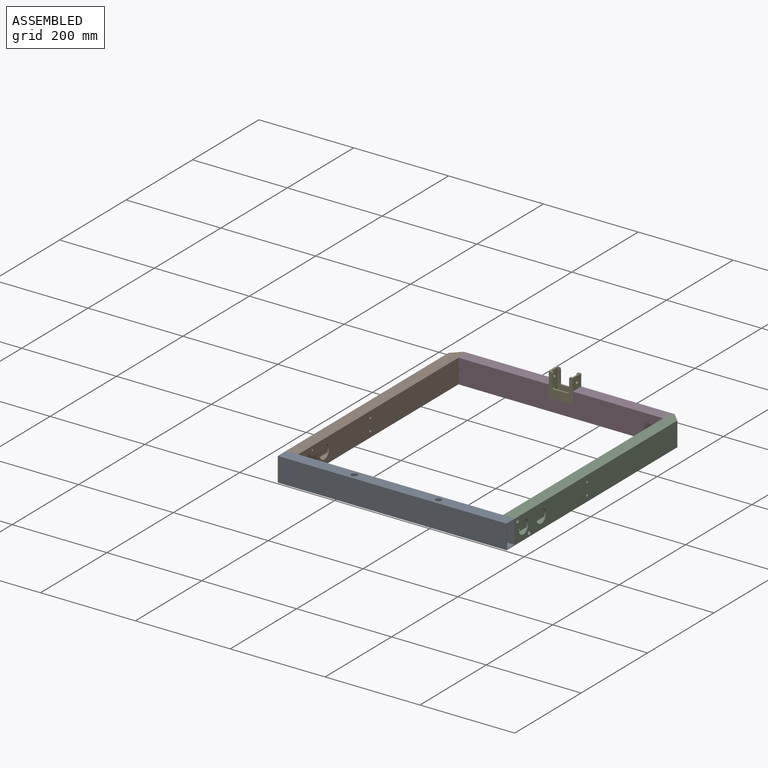
[diagram: assembled view]
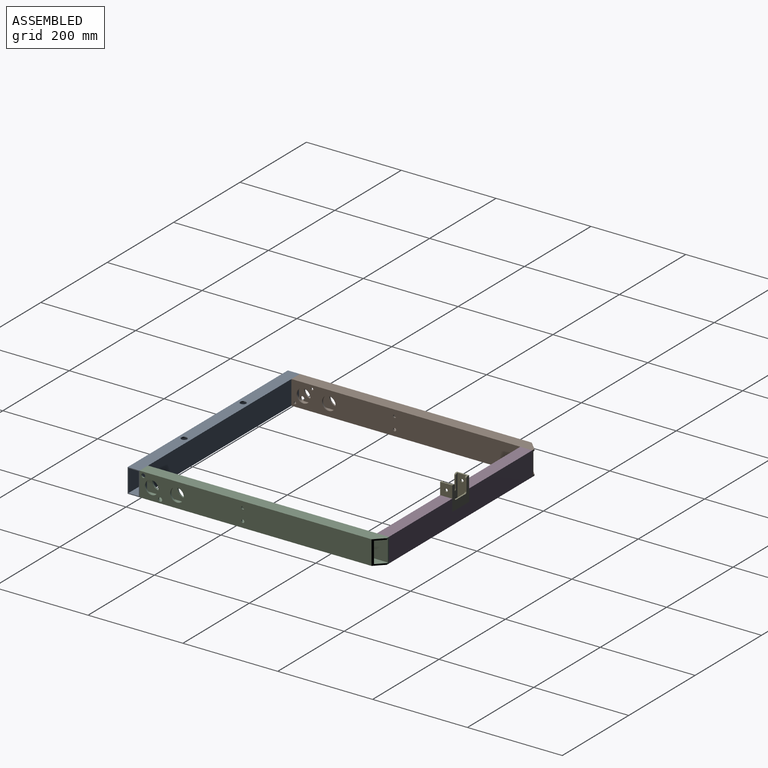
[diagram: assembled view, second angle]
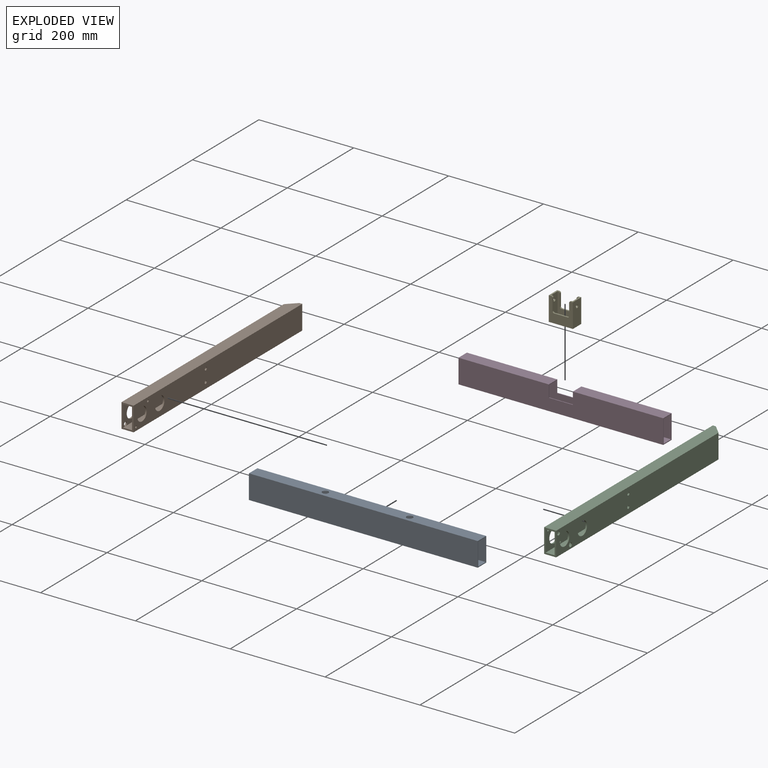
[diagram: exploded view]
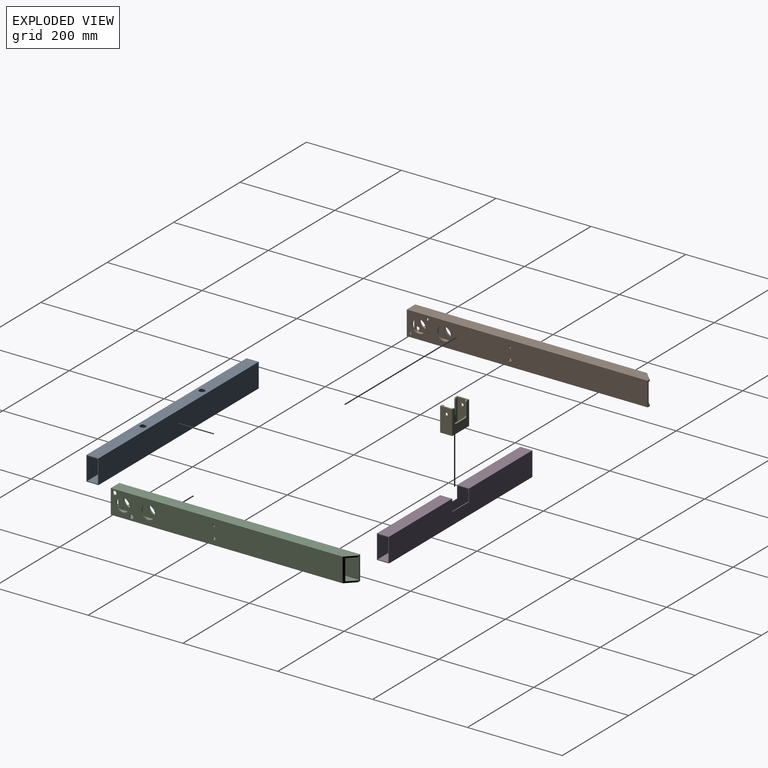
[diagram: exploded view, second angle]
ASSEMBLY  parts=5 mates=4
PART A: 14 faces, bbox 482.6x25.4x50.8 mm
  f0: plane 50.8x25.4mm, normal (1,0,0), area 231.9mm2, adj f2,f3,f4,f5,f6,f7,f8,f9
  f1: plane 50.8x25.4mm, normal (-1,0,0), area 231.9mm2, adj f2,f3,f4,f5,f6,f7,f8,f9
  f2: plane 482.6x50.8mm, normal (0,-1,0), area 24516.1mm2, adj f0,f1,f3,f5
  f3: plane 482.6x25.4mm, normal (0,0,-1), area 12194.7mm2, adj f0,f1,f2,f4,f10,f11
  f4: plane 482.6x50.8mm, normal (0,1,0), area 24516.1mm2, adj f0,f1,f3,f5
  f5: plane 482.6x25.4mm, normal (0,0,1), area 12004.7mm2, adj f0,f1,f2,f4,f12,f13
  f6: plane 482.6x47.63mm, normal (0,1,0), area 22983.8mm2, adj f0,f1,f7,f9
  f7: plane 482.6x22.23mm, normal (0,0,1), area 10662.4mm2, adj f0,f1,f6,f8,f10,f11
  f8: plane 482.6x47.63mm, normal (0,-1,0), area 22983.8mm2, adj f0,f1,f7,f9
  f9: plane 482.6x22.23mm, normal (0,0,-1), area 10472.4mm2, adj f0,f1,f6,f8,f12,f13
  f10: cylinder r=3.17mm len=6.35mm, axis (0,0,1), area 31.7mm2, adj f3,f7
  f11: cylinder r=3.17mm len=6.35mm, axis (0,0,1), area 31.7mm2, adj f3,f7
  f12: cylinder r=6.35mm len=12.7mm, axis (0,0,1), area 63.3mm2, adj f5,f9
  f13: cylinder r=6.35mm len=12.7mm, axis (0,0,1), area 63.3mm2, adj f5,f9
PART B: 23 faces, bbox 25.4x508x50.8 mm
  f0: plane 488.95x50.8mm, normal (-1,0,0), area 23385.6mm2, adj f1,f3,f5,f11,f13,f14,f16,f18
  f1: plane 50.8x25.4mm, normal (0,-1,0), area 443.5mm2, adj f0,f3,f4,f5,f6,f7,f8,f9
  f2: plane 50.8x6.35mm, normal (0,1,0), area 181.5mm2, adj f3,f4,f5,f7,f8,f9,f14
  f3: plane 508x25.4mm, normal (0,0,-1), area 12721.7mm2, adj f0,f1,f2,f4,f14
  f4: plane 508x50.8mm, normal (1,0,0), area 24426.1mm2, adj f1,f2,f3,f5,f10,f12,f15,f17
  f5: plane 508x25.4mm, normal (0,0,1), area 12721.7mm2, adj f0,f1,f2,f4,f14
  f6: plane 492.13x44.45mm, normal (1,0,0), area 20421.9mm2, adj f1,f7,f9,f11,f13,f14,f16,f18
  f7: plane 508x19.05mm, normal (0,0,1), area 9551.4mm2, adj f1,f2,f6,f8,f14
  f8: plane 508x44.45mm, normal (-1,0,0), area 21200.3mm2, adj f1,f2,f7,f9,f10,f12,f15,f17
  f9: plane 508x19.05mm, normal (0,0,-1), area 9551.4mm2, adj f1,f2,f6,f8,f14
  f10: cylinder r=14.26mm len=28.52mm, axis (1,0,0), area 284.5mm2, adj f4,f8
  f11: cylinder r=14.26mm len=28.52mm, axis (1,0,0), area 284.5mm2, adj f0,f6
  f12: cylinder r=14.26mm len=28.52mm, axis (1,0,0), area 284.5mm2, adj f4,f8
  f13: cylinder r=14.26mm len=28.52mm, axis (1,0,0), area 284.5mm2, adj f0,f6
  f14: plane 50.8x19.05mm, normal (-0.71,0.71,0), area 370.7mm2, adj f0,f2,f3,f5,f6,f7,f9
  f15: cylinder r=3.17mm len=6.35mm, axis (1,0,0), area 63.3mm2, adj f4,f8
  f16: cylinder r=3.17mm len=6.35mm, axis (1,0,0), area 63.3mm2, adj f0,f6
  f17: cylinder r=3.17mm len=6.35mm, axis (1,0,0), area 63.3mm2, adj f4,f8
  f18: cylinder r=3.17mm len=6.35mm, axis (1,0,0), area 63.3mm2, adj f0,f6
  f19: cylinder r=2.49mm len=4.98mm, axis (1,0,0), area 49.7mm2, adj f4,f8
  f20: cylinder r=2.49mm len=4.98mm, axis (1,0,0), area 49.7mm2, adj f4,f8
  f21: cylinder r=4.22mm len=8.43mm, axis (-1,0,0), area 84.1mm2, adj f0,f6
  f22: cylinder r=4.22mm len=8.43mm, axis (-1,0,0), area 84.1mm2, adj f0,f6
PART C: same geometry as B
PART D: 16 faces, bbox 431.8x25.4x50.8 mm
  f0: plane 190.5x25.4mm, normal (0,0,1), area 4838.7mm2, adj f3,f4,f6,f13
  f1: plane 190.5x22.23mm, normal (0,0,-1), area 4233.9mm2, adj f3,f8,f10,f13
  f2: plane 50.8x25.4mm, normal (1,0,0), area 231.9mm2, adj f4,f5,f6,f7,f8,f9,f10,f11
  f3: plane 50.8x25.4mm, normal (-1,0,0), area 231.9mm2, adj f0,f1,f4,f5,f6,f8,f9,f10
  f4: plane 431.8x50.8mm, normal (0,-1,0), area 20645.1mm2, adj f0,f2,f3,f5,f7,f12,f13,f14
  f5: plane 431.8x25.4mm, normal (0,0,-1), area 10967.7mm2, adj f2,f3,f4,f6
  f6: plane 431.8x50.8mm, normal (0,1,0), area 20645.1mm2, adj f0,f2,f3,f5,f7,f13,f14,f15
  f7: plane 190.5x25.4mm, normal (0,0,1), area 4838.7mm2, adj f2,f4,f6,f14
  f8: plane 431.8x47.63mm, normal (0,1,0), area 19354.8mm2, adj f1,f2,f3,f9,f11,f12,f13,f14
  f9: plane 431.8x22.23mm, normal (0,0,1), area 9596.8mm2, adj f2,f3,f8,f10
  f10: plane 431.8x47.63mm, normal (0,-1,0), area 19354.8mm2, adj f1,f2,f3,f9,f11,f13,f14,f15
  f11: plane 190.5x22.23mm, normal (0,0,-1), area 4233.9mm2, adj f2,f8,f10,f14
  f12: plane 50.8x1.59mm, normal (0,0,1), area 80.6mm2, adj f4,f8,f13,f14
  f13: plane 25.4x25.4mm, normal (1,0,0), area 115.9mm2, adj f0,f1,f4,f6,f8,f10,f12,f15
  f14: plane 25.4x25.4mm, normal (-1,0,0), area 115.9mm2, adj f4,f6,f7,f8,f10,f11,f12,f15
  f15: plane 50.8x1.59mm, normal (0,0,1), area 80.6mm2, adj f6,f10,f13,f14
PART E: 27 faces, bbox 50.8x25.4x50.8 mm
  f0: plane 25.4x4.76mm, normal (0,0,1), area 90.7mm2, adj f3,f4,f6,f7,f8,f10,f25,f26
  f1: plane 25.4x4.76mm, normal (0,0,1), area 90.7mm2, adj f4,f5,f6,f8,f9,f10,f19,f20
  f2: plane 50.8x25.4mm, normal (0,0,-1), area 443.5mm2, adj f3,f4,f5,f6,f7,f8,f9,f10
  f3: plane 50.8x25.4mm, normal (-1,0,0), area 1258.7mm2, adj f0,f2,f4,f6,f18
  f4: plane 50.8x50.8mm, normal (0,-1,0), area 1471.8mm2, adj f0,f1,f2,f3,f5,f14,f15,f16
  f5: plane 50.8x25.4mm, normal (1,0,0), area 1258.7mm2, adj f1,f2,f4,f6,f17
  f6: plane 50.8x50.8mm, normal (0,1,0), area 1471.8mm2, adj f0,f1,f2,f3,f5,f11,f12,f13
  f7: plane 50.8x19.05mm, normal (1,0,0), area 936.1mm2, adj f0,f2,f8,f10,f18
  f8: plane 50.8x44.45mm, normal (0,1,0), area 1149.2mm2, adj f0,f1,f2,f7,f9,f14,f15,f16
  f9: plane 50.8x19.05mm, normal (-1,0,0), area 936.1mm2, adj f1,f2,f8,f10,f17
  f10: plane 50.8x44.45mm, normal (0,-1,0), area 1149.2mm2, adj f0,f1,f2,f7,f9,f11,f12,f13
  f11: plane 28.58x3.18mm, normal (0,0,1), area 90.7mm2, adj f6,f10,f21,f23
  f12: plane 25.4x3.18mm, normal (-1,0,0), area 80.6mm2, adj f6,f10,f20,f23
  f13: plane 25.4x3.18mm, normal (1,0,0), area 80.6mm2, adj f6,f10,f21,f25
  f14: plane 25.4x3.18mm, normal (1,0,0), area 80.6mm2, adj f4,f8,f24,f26
  f15: plane 25.4x3.18mm, normal (-1,0,0), area 80.6mm2, adj f4,f8,f19,f22
  f16: plane 28.58x3.18mm, normal (0,0,1), area 90.7mm2, adj f4,f8,f22,f24
  f17: cylinder r=3.17mm len=6.35mm, axis (1,0,0), area 63.3mm2, adj f5,f9
  f18: cylinder r=3.17mm len=6.35mm, axis (1,0,0), area 63.3mm2, adj f3,f7
  f19: cylinder r=3.17mm len=3.18mm, axis (0,1,0), area 15.8mm2, adj f1,f4,f8,f15
  f20: cylinder r=3.17mm len=3.18mm, axis (0,1,0), area 15.8mm2, adj f1,f6,f10,f12
  f21: cylinder r=3.17mm len=3.18mm, axis (0,1,0), area 15.8mm2, adj f6,f10,f11,f13
  f22: cylinder r=3.17mm len=3.18mm, axis (0,1,0), area 15.8mm2, adj f4,f8,f15,f16
  f23: cylinder r=3.17mm len=3.18mm, axis (0,1,0), area 15.8mm2, adj f6,f10,f11,f12
  f24: cylinder r=3.17mm len=3.18mm, axis (0,1,0), area 15.8mm2, adj f4,f8,f14,f16
  f25: cylinder r=3.17mm len=3.18mm, axis (0,1,0), area 15.8mm2, adj f0,f6,f10,f13
  f26: cylinder r=3.17mm len=3.18mm, axis (0,1,0), area 15.8mm2, adj f0,f4,f8,f14
PLACE A t=(-509.17,-415.32,-26.54)mm
PLACE B t=(-509.17,118.08,-26.54)mm
PLACE C rot(axis=(0,1,0),180deg) t=(-26.57,118.08,24.26)mm
PLACE D t=(-483.77,92.68,-26.54)mm
PLACE E t=(-293.27,92.68,-1.14)mm
MATE fastened B.f1 <-> A.f4  axis (0,-1,0) through (-509.17,-389.92,-1.14)mm
MATE fastened E.f2 <-> D.f15  axis (0,0,-1) through (-267.87,118.08,-1.14)mm
MATE fastened A.f4 <-> C.f1  axis (0,1,0) through (-26.57,-389.92,-1.14)mm
MATE fastened C.f4 <-> D.f2  axis (-1,0,0) through (-51.97,118.08,-1.14)mm
